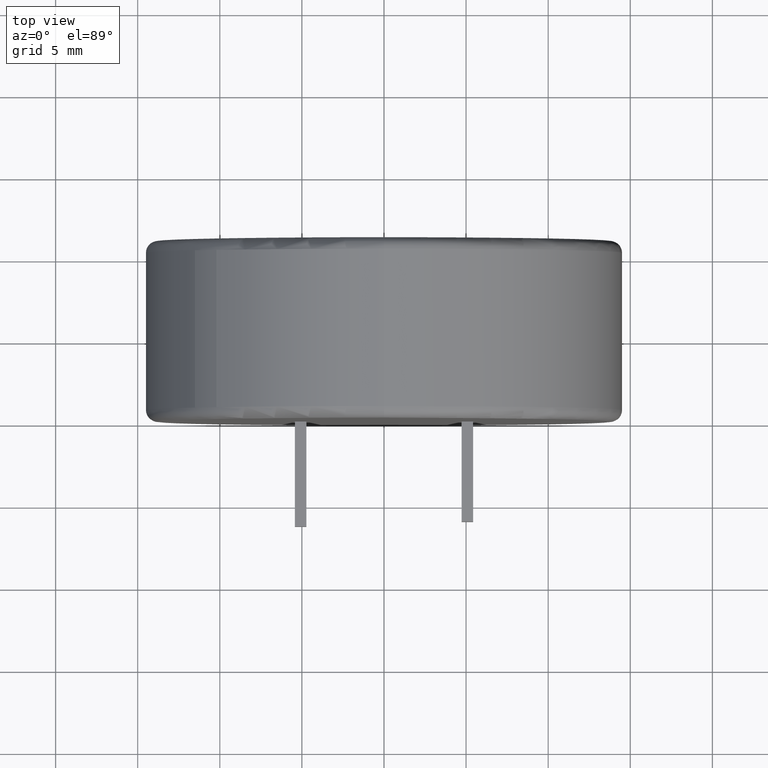
[diagram: clean part render]
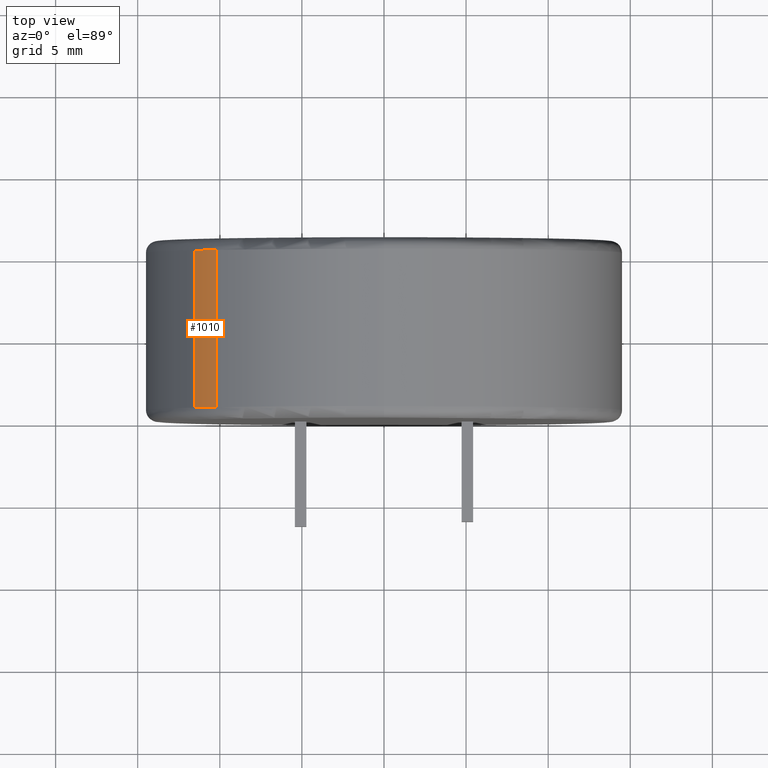
[diagram: same view with one face highlighted and labeled with its STEP entity id]
A machine part, top view. The second image highlights one B-rep face of the part: STEP entity #1010.
In plain terms, the highlighted cylindrical surface (partial cylindrical patch) has radius 14.51 mm, axis along (-0, -1, -0).
Its self-contained STEP definition (entity closure, byte-faithful):
#115 = DIRECTION ( 'NONE',  ( -0.0000000000000000000, -1.000000000000000000, -0.0000000000000000000 ) ) ;
#152 = VECTOR ( 'NONE', #1863, 1000.000000000000000 ) ;
#210 = CARTESIAN_POINT ( 'NONE',  ( -10.19070277442037500, 11.00000000000000000, 10.32906951101699800 ) ) ;
#325 = CARTESIAN_POINT ( 'NONE',  ( 0.0000000000000000000, 11.00000000000000000, 0.0000000000000000000 ) ) ;
#326 = EDGE_CURVE ( 'NONE', #888, #1783, #2407, .T. ) ;
#373 = FACE_OUTER_BOUND ( 'NONE', #2606, .T. ) ;
#669 = CARTESIAN_POINT ( 'NONE',  ( 0.0000000000000000000, 10.29050000000000000, 0.0000000000000000000 ) ) ;
#751 = ORIENTED_EDGE ( 'NONE', *, *, #758, .T. ) ;
#758 = EDGE_CURVE ( 'NONE', #2223, #888, #2039, .T. ) ;
#865 = ORIENTED_EDGE ( 'NONE', *, *, #2142, .T. ) ;
#888 = VERTEX_POINT ( 'NONE', #1125 ) ;
#1005 = LINE ( 'NONE', #210, #1269 ) ;
#1010 = ADVANCED_FACE ( 'NONE', ( #373 ), #2242, .T. ) ;
#1027 = AXIS2_PLACEMENT_3D ( 'NONE', #669, #1731, #2582 ) ;
#1028 = DIRECTION ( 'NONE',  ( -7.105427357601001900E-015, 0.0000000000000000000, -1.000000000000000000 ) ) ;
#1125 = CARTESIAN_POINT ( 'NONE',  ( -11.51410351804147500, 10.29050000000000000, 8.829808614903550200 ) ) ;
#1169 = DIRECTION ( 'NONE',  ( 0.0000000000000000000, 1.000000000000000000, 0.0000000000000000000 ) ) ;
#1247 = CARTESIAN_POINT ( 'NONE',  ( -11.51410351804147500, 11.00000000000000000, 8.829808614903550200 ) ) ;
#1269 = VECTOR ( 'NONE', #1169, 1000.000000000000000 ) ;
#1683 = AXIS2_PLACEMENT_3D ( 'NONE', #325, #115, #2405 ) ;
#1708 = ORIENTED_EDGE ( 'NONE', *, *, #1795, .T. ) ;
#1731 = DIRECTION ( 'NONE',  ( -0.0000000000000000000, -1.000000000000000000, -0.0000000000000000000 ) ) ;
#1783 = VERTEX_POINT ( 'NONE', #2685 ) ;
#1792 = CARTESIAN_POINT ( 'NONE',  ( -10.19070277442037500, 10.29050000000000000, 10.32906951101699800 ) ) ;
#1795 = EDGE_CURVE ( 'NONE', #1783, #2009, #2761, .T. ) ;
#1804 = DIRECTION ( 'NONE',  ( 0.0000000000000000000, 1.000000000000000000, 0.0000000000000000000 ) ) ;
#1863 = DIRECTION ( 'NONE',  ( -0.0000000000000000000, -1.000000000000000000, -0.0000000000000000000 ) ) ;
#2009 = VERTEX_POINT ( 'NONE', #2406 ) ;
#2020 = ORIENTED_EDGE ( 'NONE', *, *, #326, .T. ) ;
#2039 = CIRCLE ( 'NONE', #1027, 14.51000000000000000 ) ;
#2142 = EDGE_CURVE ( 'NONE', #2009, #2223, #1005, .T. ) ;
#2223 = VERTEX_POINT ( 'NONE', #1792 ) ;
#2224 = AXIS2_PLACEMENT_3D ( 'NONE', #2750, #1804, #1028 ) ;
#2242 = CYLINDRICAL_SURFACE ( 'NONE', #1683, 14.51000000000000000 ) ;
#2405 = DIRECTION ( 'NONE',  ( 0.0000000000000000000, 0.0000000000000000000, -1.000000000000000000 ) ) ;
#2406 = CARTESIAN_POINT ( 'NONE',  ( -10.19070277442037000, 0.7095000000000000200, 10.32906951101700300 ) ) ;
#2407 = LINE ( 'NONE', #1247, #152 ) ;
#2582 = DIRECTION ( 'NONE',  ( 0.0000000000000000000, 0.0000000000000000000, -1.000000000000000000 ) ) ;
#2606 = EDGE_LOOP ( 'NONE', ( #2020, #1708, #865, #751 ) ) ;
#2685 = CARTESIAN_POINT ( 'NONE',  ( -11.51410351804147500, 0.7095000000000000200, 8.829808614903550200 ) ) ;
#2750 = CARTESIAN_POINT ( 'NONE',  ( 0.0000000000000000000, 0.7095000000000000200, 0.0000000000000000000 ) ) ;
#2761 = CIRCLE ( 'NONE', #2224, 14.51000000000000000 ) ;